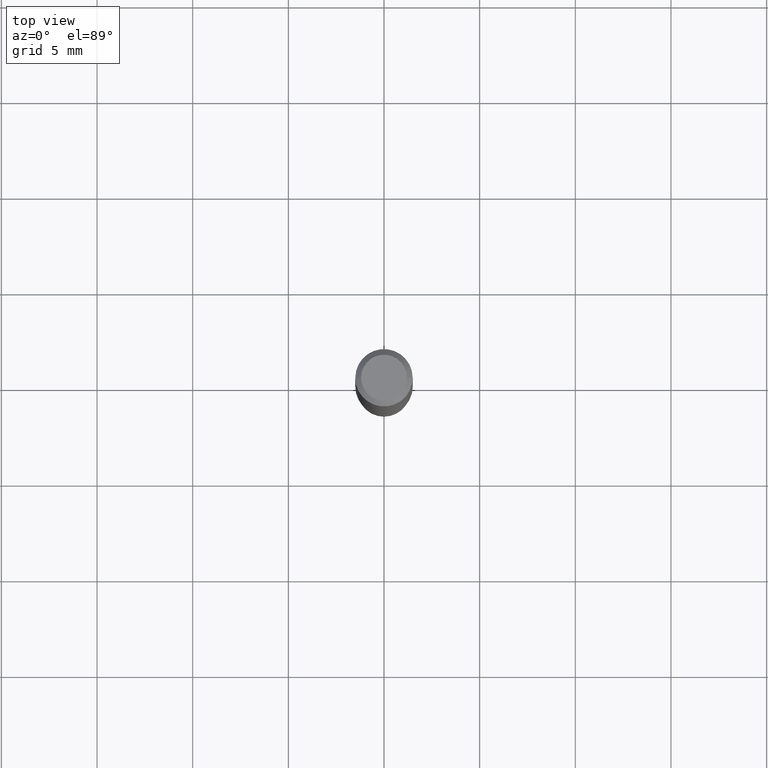
[diagram: clean part render]
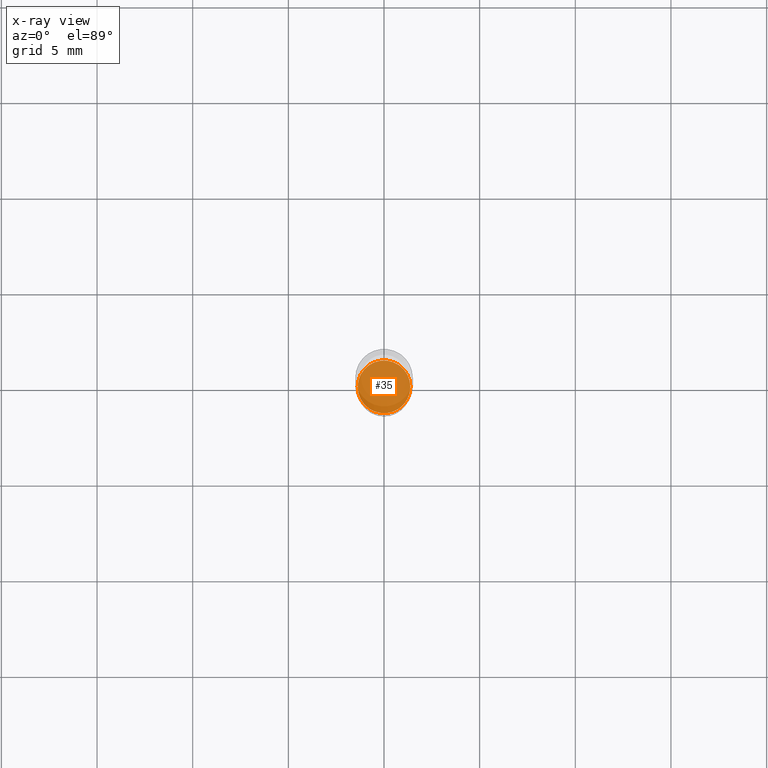
[diagram: x-ray — body ghosted, one internal face saturated and labeled with its STEP entity id]
A machine part, top view, then the same camera in x-ray: the body is ghosted and one INTERNAL B-rep face — a face not visible from any outside direction — is saturated and labeled: STEP entity #35.
In plain terms, the highlighted planar face has unit normal (-0, 0, 1).
Its self-contained STEP definition (entity closure, byte-faithful):
#7 = ORIENTED_EDGE ( 'NONE', *, *, #341, .F. ) ;
#35 = ADVANCED_FACE ( 'NONE', ( #59 ), #244, .F. ) ;
#59 = FACE_OUTER_BOUND ( 'NONE', #313, .T. ) ;
#74 = EDGE_CURVE ( 'NONE', #460, #490, #433, .T. ) ;
#92 = CARTESIAN_POINT ( 'NONE',  ( 4.602682922000797681E-29, -1.063116704454656126E-15, -1.094499999999999806 ) ) ;
#93 = CARTESIAN_POINT ( 'NONE',  ( -0.05419999999999999818, -3.433662935407737087E-15, -1.094499999999999806 ) ) ;
#110 = AXIS2_PLACEMENT_3D ( 'NONE', #92, #323, #203 ) ;
#127 = CIRCLE ( 'NONE', #273, 0.05419999999999999818 ) ;
#160 = DIRECTION ( 'NONE',  ( 1.000000000000000000, -6.982962677686268288E-15, 0.000000000000000000 ) ) ;
#203 = DIRECTION ( 'NONE',  ( 1.000000000000000000, -6.982962677686265922E-15, 4.876176775795935793E-29 ) ) ;
#206 = CARTESIAN_POINT ( 'NONE',  ( 2.676565608369631234E-29, -3.821426325363821984E-15, -1.094499999999999806 ) ) ;
#241 = AXIS2_PLACEMENT_3D ( 'NONE', #206, #432, #281 ) ;
#244 = PLANE ( 'NONE',  #110 ) ;
#273 = AXIS2_PLACEMENT_3D ( 'NONE', #412, #461, #160 ) ;
#281 = DIRECTION ( 'NONE',  ( 1.000000000000000000, -6.982962677686268288E-15, 0.000000000000000000 ) ) ;
#313 = EDGE_LOOP ( 'NONE', ( #337, #7 ) ) ;
#323 = DIRECTION ( 'NONE',  ( -2.438088387897960049E-29, 3.491481338843145188E-15, 1.000000000000000000 ) ) ;
#325 = CARTESIAN_POINT ( 'NONE',  ( 0.05419999999999999818, -4.199902902494418158E-15, -1.094499999999999806 ) ) ;
#337 = ORIENTED_EDGE ( 'NONE', *, *, #74, .F. ) ;
#341 = EDGE_CURVE ( 'NONE', #490, #460, #127, .T. ) ;
#412 = CARTESIAN_POINT ( 'NONE',  ( 2.676565608369631234E-29, -3.821426325363821984E-15, -1.094499999999999806 ) ) ;
#432 = DIRECTION ( 'NONE',  ( -2.445468806185136597E-29, 3.491481338843145583E-15, 1.000000000000000000 ) ) ;
#433 = CIRCLE ( 'NONE', #241, 0.05419999999999999818 ) ;
#460 = VERTEX_POINT ( 'NONE', #325 ) ;
#461 = DIRECTION ( 'NONE',  ( -2.445468806185136597E-29, 3.491481338843145583E-15, 1.000000000000000000 ) ) ;
#490 = VERTEX_POINT ( 'NONE', #93 ) ;